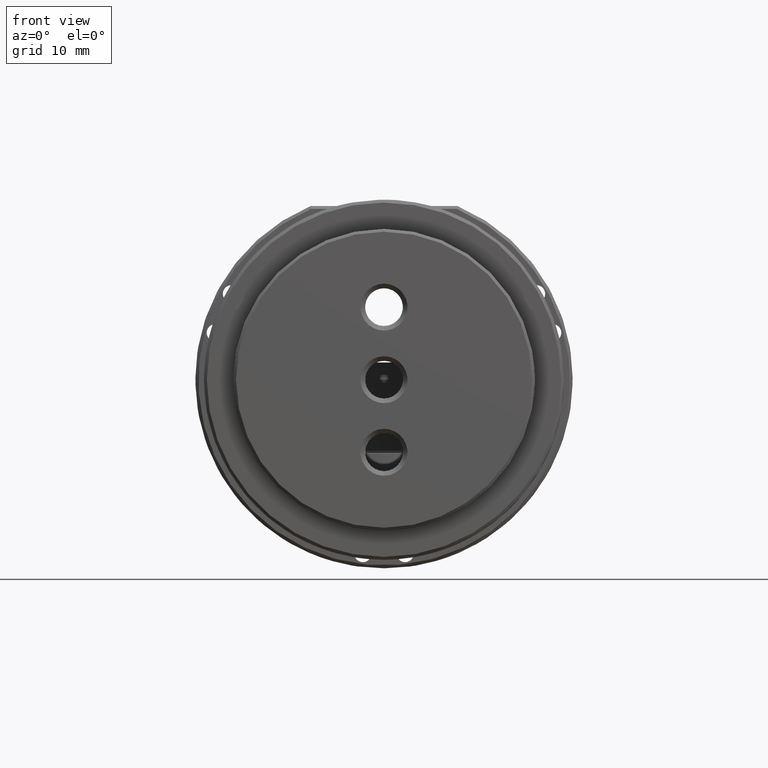
[diagram: clean part render]
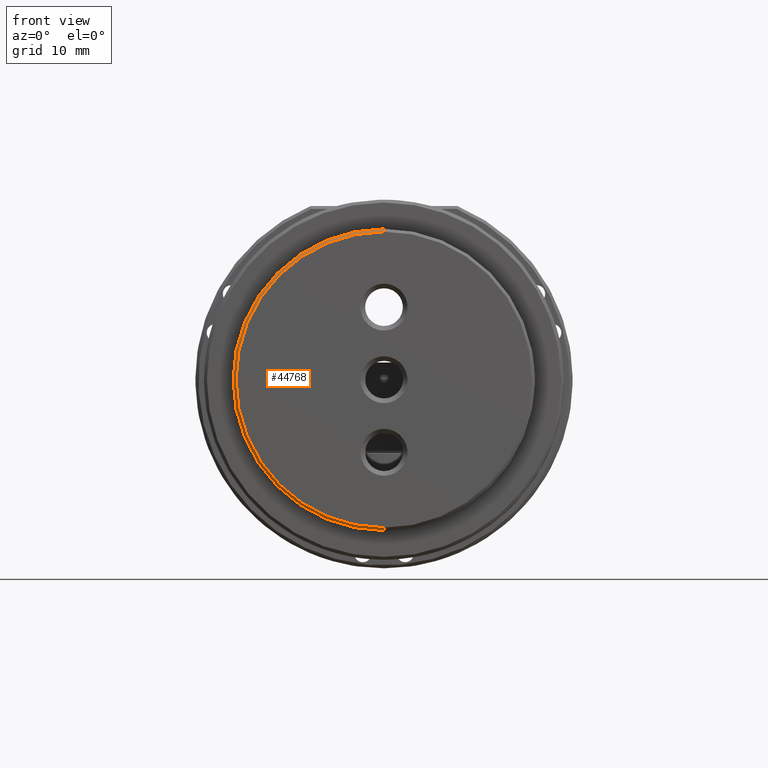
[diagram: same view with one face highlighted and labeled with its STEP entity id]
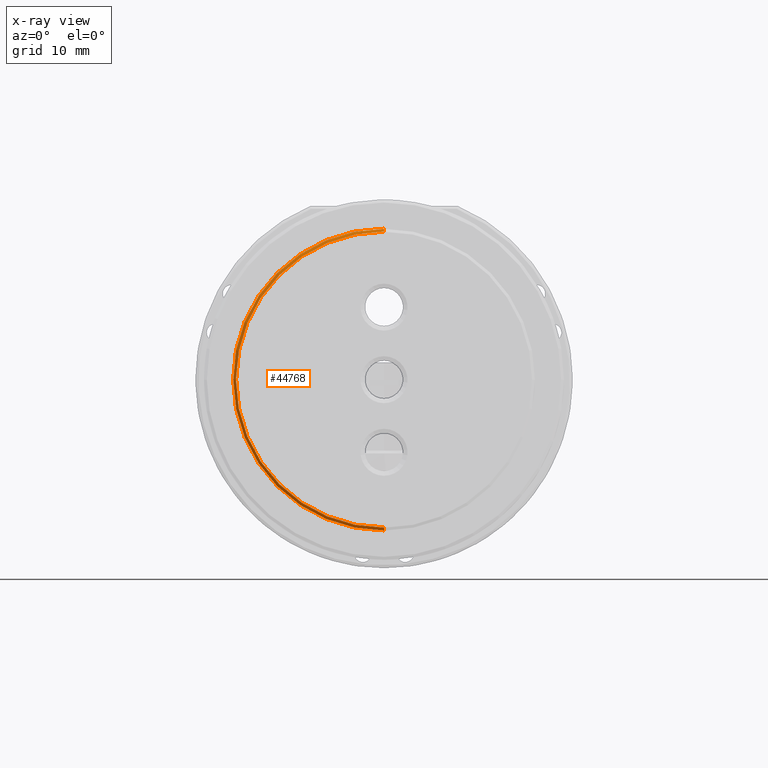
[diagram: x-ray of the same camera — body ghosted, the highlighted face saturated]
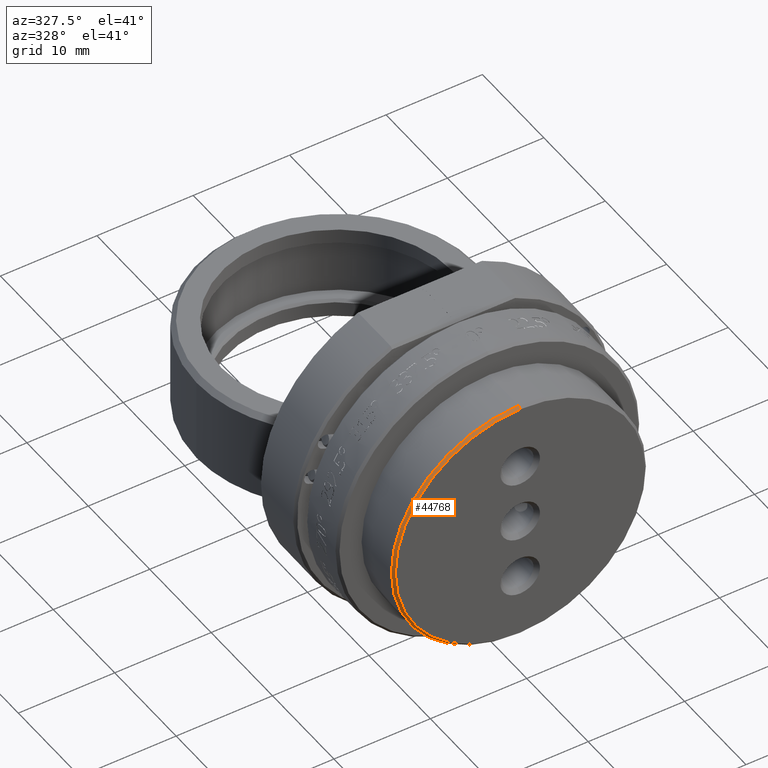
[diagram: same view with one face highlighted and labeled with its STEP entity id]
A machine part, front view. The second image highlights one B-rep face of the part: STEP entity #44768.
The next image is the same camera in x-ray: the body ghosted, the highlighted face saturated — about 0% of this face is hidden behind the body in this view.
A second angle (auxiliary view) of the same face is appended — the face is thin or edge-on in the first view.
In plain terms, the highlighted conical surface has half-angle 45 deg.
Its self-contained STEP definition (entity closure, byte-faithful):
#1701 = VECTOR ( 'NONE', #2499, 1000.000000000000000 ) ;
#2343 = AXIS2_PLACEMENT_3D ( 'NONE', #2716, #51289, #5891 ) ;
#2499 = DIRECTION ( 'NONE',  ( 0.000000000000000000, 0.7071067811865597852, 0.7071067811865352493 ) ) ;
#2716 = CARTESIAN_POINT ( 'NONE',  ( -1.040834085586084257E-13, -18.67473527255164711, -1.457167719820517959E-13 ) ) ;
#3535 = CARTESIAN_POINT ( 'NONE',  ( -1.024671197130937425E-13, -18.67473527255164711, -13.19800000000014428 ) ) ;
#5891 = DIRECTION ( 'NONE',  ( 0.000000000000000000, 0.000000000000000000, 1.000000000000000000 ) ) ;
#8063 = EDGE_CURVE ( 'NONE', #24883, #32875, #26125, .T. ) ;
#10572 = ORIENTED_EDGE ( 'NONE', *, *, #8063, .F. ) ;
#11553 = CARTESIAN_POINT ( 'NONE',  ( -1.024671197130937425E-13, -18.67473527255164711, -13.19800000000014428 ) ) ;
#11915 = AXIS2_PLACEMENT_3D ( 'NONE', #16014, #16527, #28765 ) ;
#12253 = ORIENTED_EDGE ( 'NONE', *, *, #19857, .F. ) ;
#15847 = CARTESIAN_POINT ( 'NONE',  ( -1.040834085586084257E-13, -18.67473527255164711, -1.457167719820517959E-13 ) ) ;
#16014 = CARTESIAN_POINT ( 'NONE',  ( -1.040834085586084257E-13, -18.92473527255162580, -1.457167719820517959E-13 ) ) ;
#16527 = DIRECTION ( 'NONE',  ( 0.000000000000000000, -1.000000000000000000, 0.000000000000000000 ) ) ;
#16932 = EDGE_LOOP ( 'NONE', ( #12253, #24733, #36431, #10572 ) ) ;
#19857 = EDGE_CURVE ( 'NONE', #42223, #24883, #52195, .T. ) ;
#20161 = EDGE_CURVE ( 'NONE', #52172, #32875, #34633, .T. ) ;
#22100 = CIRCLE ( 'NONE', #11915, 12.94800000000002704 ) ;
#23850 = CARTESIAN_POINT ( 'NONE',  ( -1.040834085586084257E-13, -18.92473527255162580, 12.94799999999988138 ) ) ;
#24733 = ORIENTED_EDGE ( 'NONE', *, *, #49215, .F. ) ;
#24883 = VERTEX_POINT ( 'NONE', #3535 ) ;
#25218 = CONICAL_SURFACE ( 'NONE', #2343, 13.19799999999999862, 0.7853981633974309595 ) ;
#26125 = CIRCLE ( 'NONE', #48194, 13.19799999999999862 ) ;
#27823 = CARTESIAN_POINT ( 'NONE',  ( -1.040834085586084257E-13, -18.67473527255164711, 13.19799999999985296 ) ) ;
#28765 = DIRECTION ( 'NONE',  ( 0.000000000000000000, 0.000000000000000000, -1.000000000000000000 ) ) ;
#31739 = DIRECTION ( 'NONE',  ( 8.659560562354781249E-17, 0.7071067811865597852, -0.7071067811865352493 ) ) ;
#32875 = VERTEX_POINT ( 'NONE', #27823 ) ;
#33231 = CARTESIAN_POINT ( 'NONE',  ( -1.024824277980831002E-13, -18.92473527255162580, -12.94800000000017270 ) ) ;
#34633 = LINE ( 'NONE', #50817, #1701 ) ;
#36431 = ORIENTED_EDGE ( 'NONE', *, *, #20161, .T. ) ;
#39086 = FACE_OUTER_BOUND ( 'NONE', #16932, .T. ) ;
#42223 = VERTEX_POINT ( 'NONE', #33231 ) ;
#44768 = ADVANCED_FACE ( 'NONE', ( #39086 ), #25218, .T. ) ;
#47466 = DIRECTION ( 'NONE',  ( -0.000000000000000000, 1.000000000000000000, -0.000000000000000000 ) ) ;
#47493 = VECTOR ( 'NONE', #31739, 1000.000000000000000 ) ;
#47725 = DIRECTION ( 'NONE',  ( 0.000000000000000000, 0.000000000000000000, -1.000000000000000000 ) ) ;
#48194 = AXIS2_PLACEMENT_3D ( 'NONE', #15847, #47466, #47725 ) ;
#49215 = EDGE_CURVE ( 'NONE', #52172, #42223, #22100, .T. ) ;
#50817 = CARTESIAN_POINT ( 'NONE',  ( -1.040834085586084257E-13, -18.67473527255164711, 13.19799999999985296 ) ) ;
#51289 = DIRECTION ( 'NONE',  ( -0.000000000000000000, 1.000000000000000000, -0.000000000000000000 ) ) ;
#52172 = VERTEX_POINT ( 'NONE', #23850 ) ;
#52195 = LINE ( 'NONE', #11553, #47493 ) ;